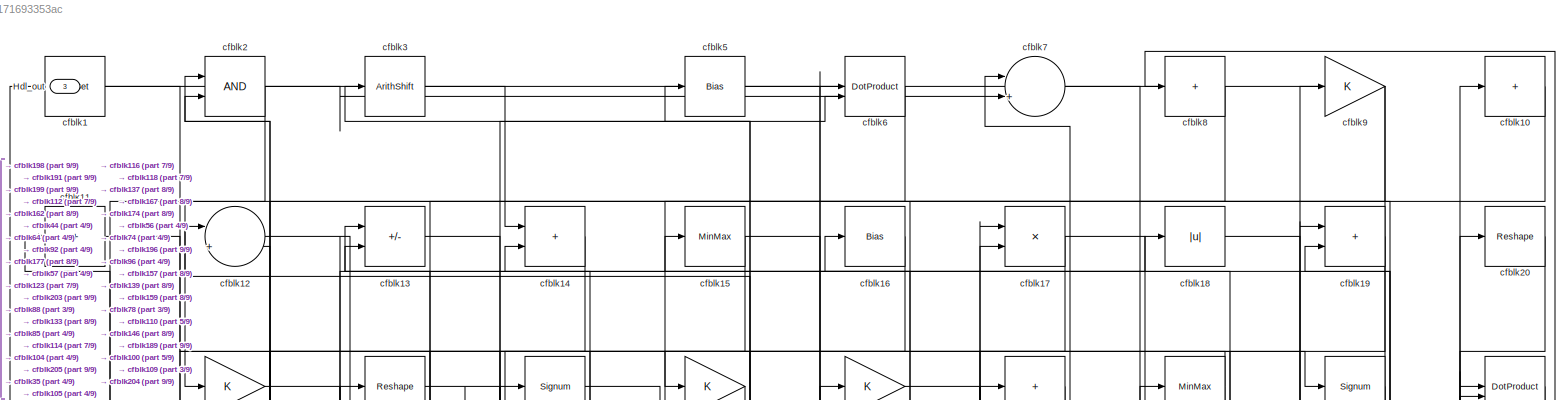
[diagram: root canvas - part 1/9, full width, top band]
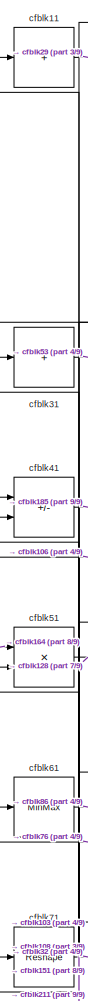
[diagram: root canvas - part 2/9, top left region]
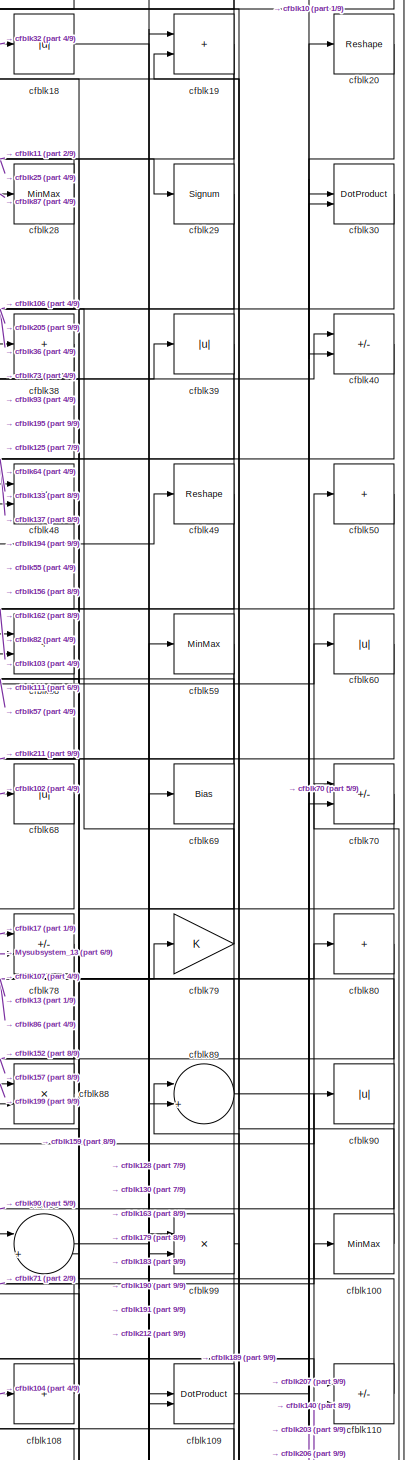
[diagram: root canvas - part 3/9, top right region]
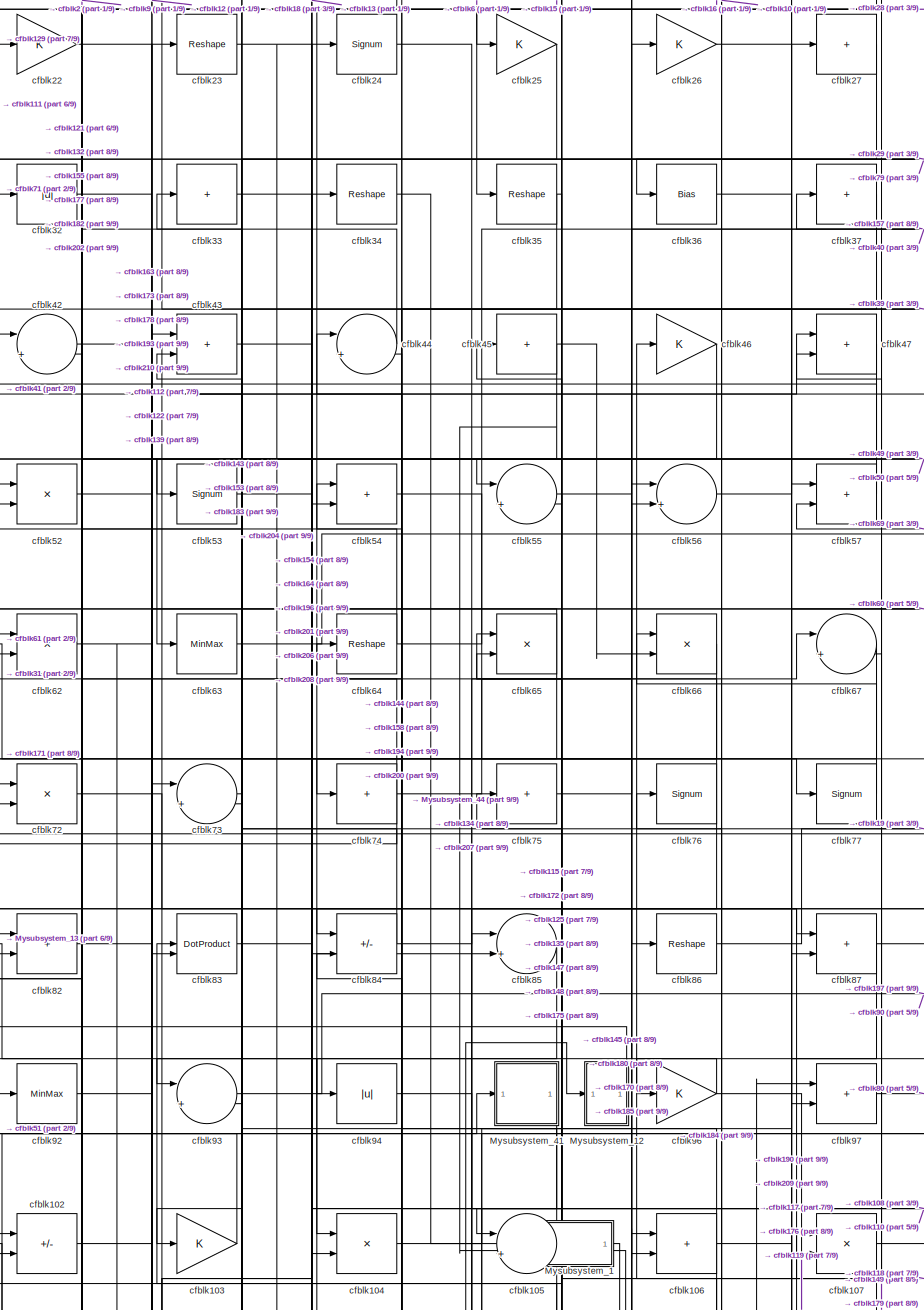
[diagram: root canvas - part 4/9, top center region]
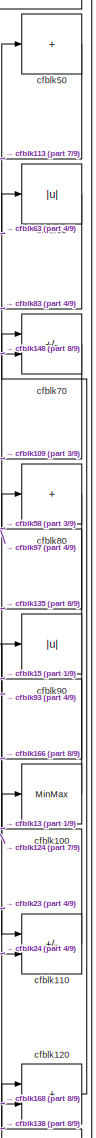
[diagram: root canvas - part 5/9, middle right region]
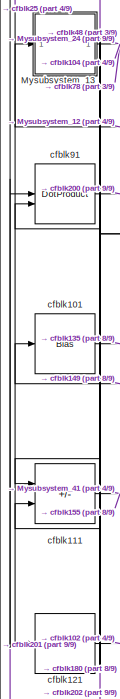
[diagram: root canvas - part 6/9, middle left region]
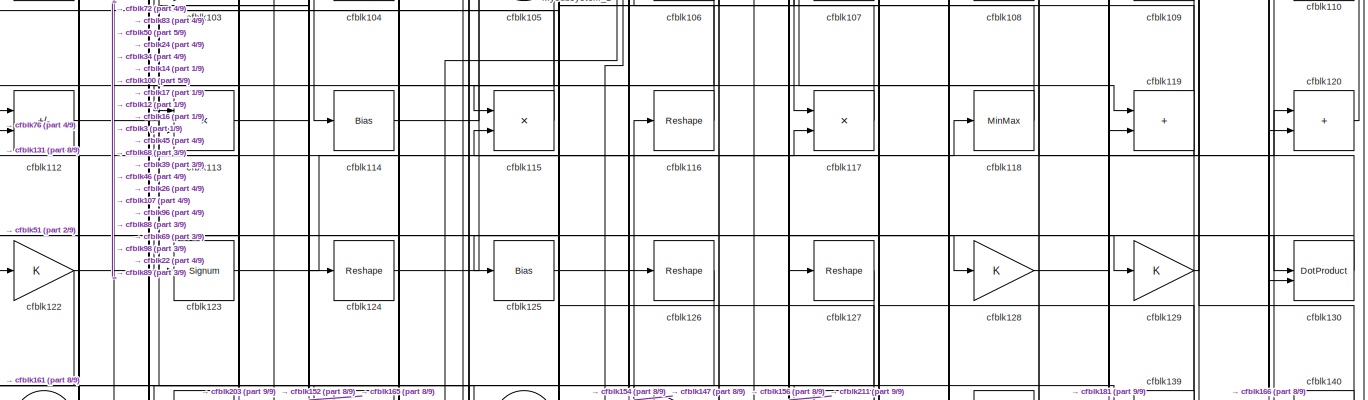
[diagram: root canvas - part 7/9, full width, middle band]
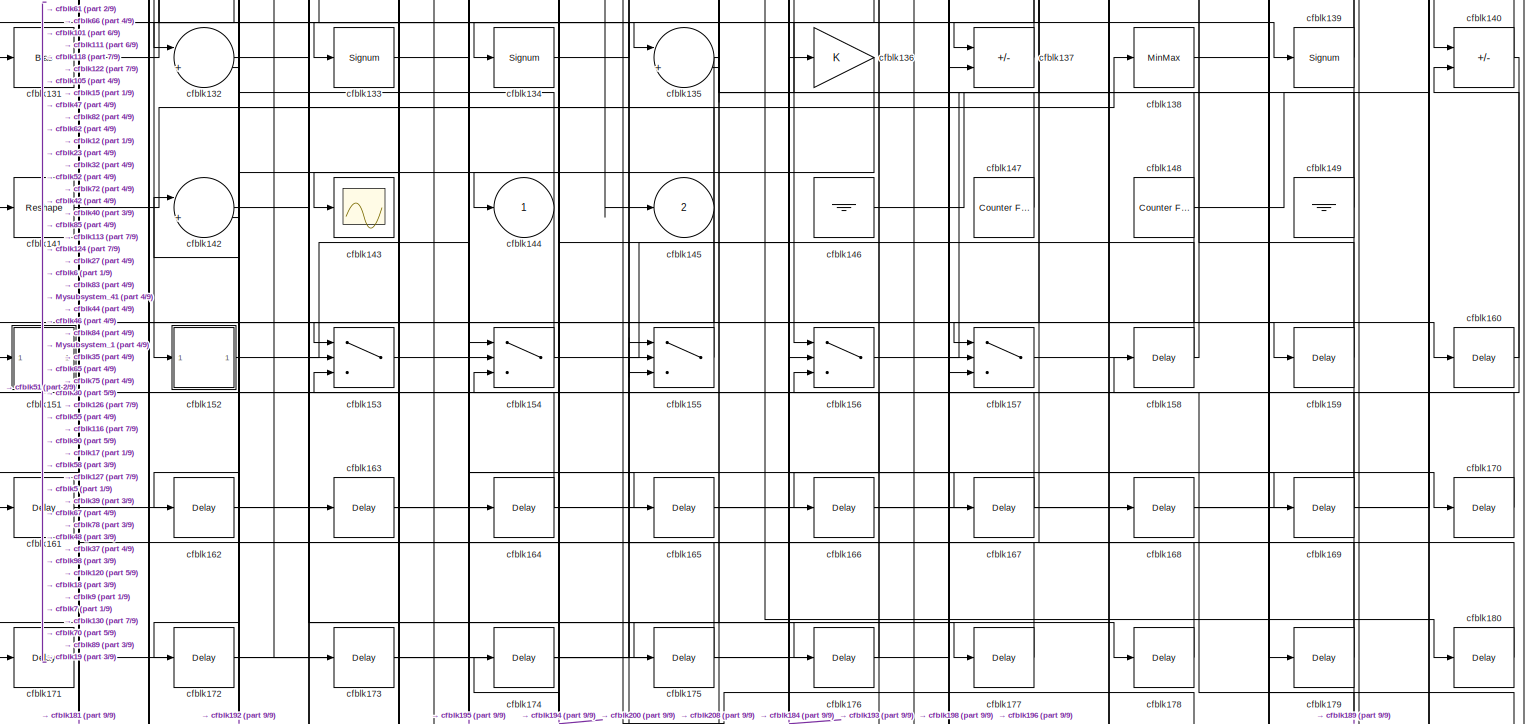
[diagram: root canvas - part 8/9, full width, bottom band]
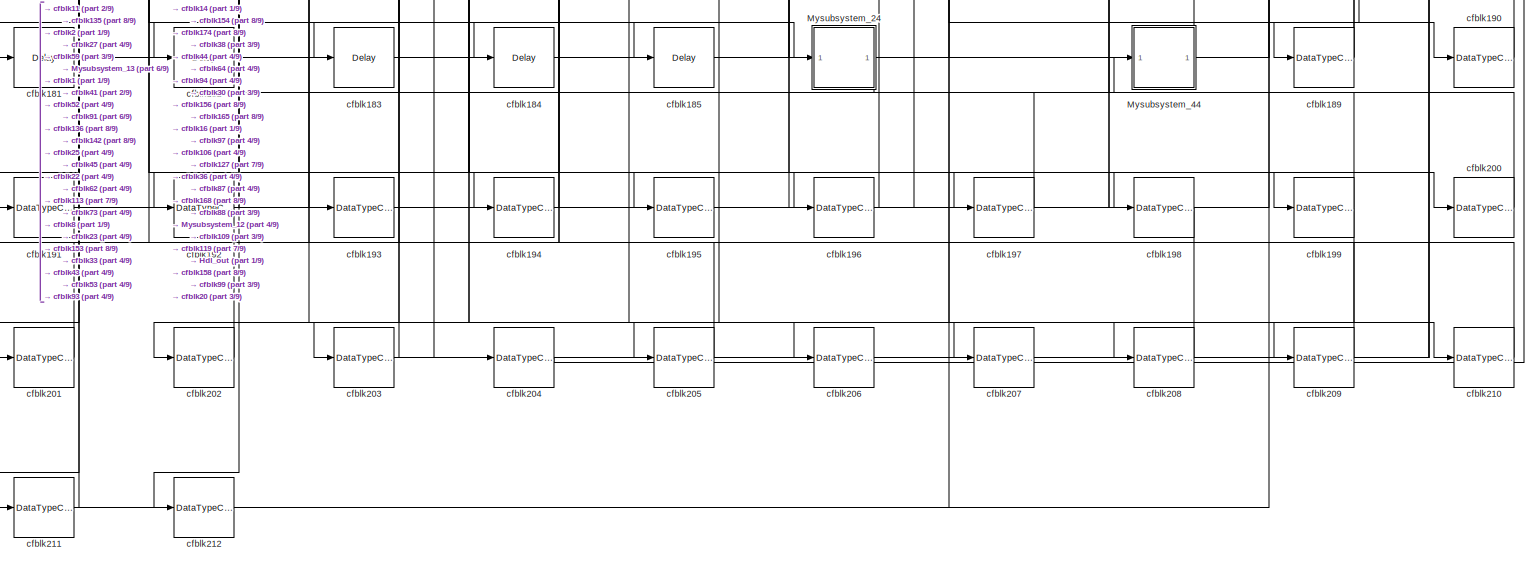
[diagram: root canvas - part 9/9, full width, bottom band]
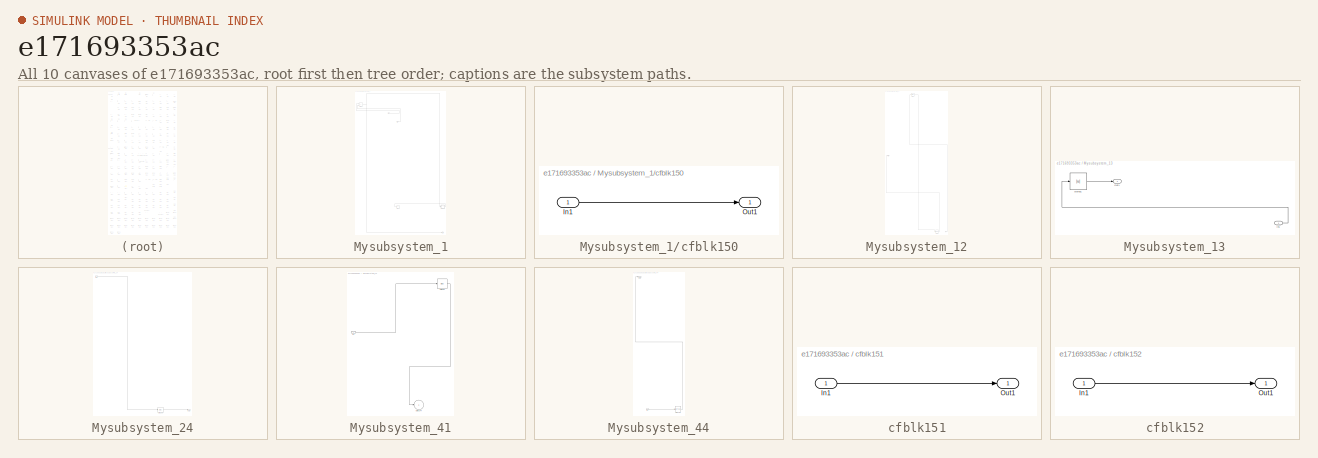
[diagram: thumbnail index - all 10 canvases of the model, root first then tree order]
MODEL slx_e171693353ac
KIND model
CONFIG AbsTol = auto
CONFIG EnableMultiTasking = off
CONFIG FixedStep = auto
CONFIG MaxStep = auto
CONFIG MinStep = auto
CONFIG RelTol = 1e-3
CONFIG SampleTimeConstraint = Unconstrained
CONFIG SolverName = VariableStepAuto
CONFIG StartTime = 0.0
CONFIG StopTime = 10.0
BLOCK [Outport] Hdl_out
  OutDataTypeStr = uint8
  Port = 3
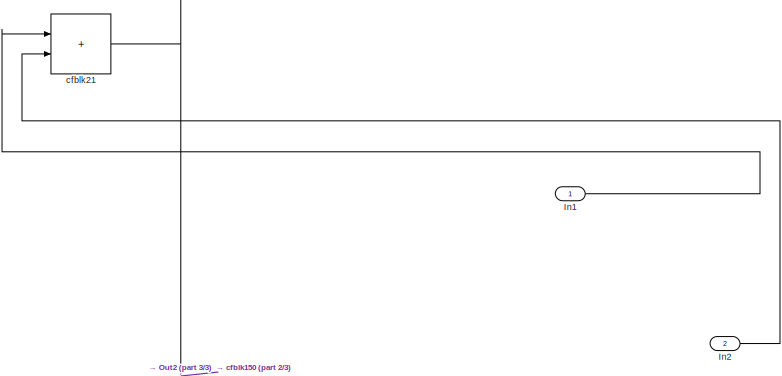
[diagram: Mysubsystem_1 - part 1/3, top left region]
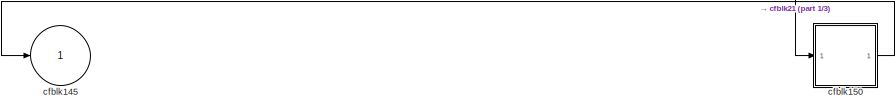
[diagram: Mysubsystem_1 - part 2/3, bottom right region]
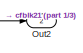
[diagram: Mysubsystem_1 - part 3/3, bottom right region]
BLOCK [SubSystem] Mysubsystem_1
  RTWFcnName = Mysubsystem_1
  RTWFcnNameOpts = User specified
  RTWFileNameOpts = Use function name
  RTWSystemCode = Reusable function
  TreatAsAtomicUnit = on
BLOCK [Inport] Mysubsystem_1/In1
BLOCK [Inport] Mysubsystem_1/In2
  Port = 2
BLOCK [Outport] Mysubsystem_1/Out2
  Port = 2
BLOCK [Outport] Mysubsystem_1/cfblk145
  VectorParamsAs1DForOutWhenUnconnected = off
BLOCK [SubSystem] Mysubsystem_1/cfblk150
  LibrarySourceBlock = hdlsllib/Ports &\nSubsystems/Subsystem
BLOCK [Inport] Mysubsystem_1/cfblk150/In1
BLOCK [Outport] Mysubsystem_1/cfblk150/Out1
BLOCK [Sum] Mysubsystem_1/cfblk21
  IconShape = rectangular
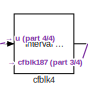
[diagram: Mysubsystem_12 - part 1/4, top center region]
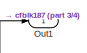
[diagram: Mysubsystem_12 - part 2/4, middle left region]
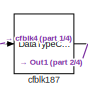
[diagram: Mysubsystem_12 - part 3/4, bottom right region]
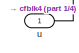
[diagram: Mysubsystem_12 - part 4/4, bottom right region]
BLOCK [SubSystem] Mysubsystem_12
  RTWFcnName = Mysubsystem_12
  RTWFcnNameOpts = User specified
  RTWFileNameOpts = Use function name
  RTWSystemCode = Reusable function
  TreatAsAtomicUnit = on
BLOCK [Outport] Mysubsystem_12/Out1
BLOCK [DataTypeConversion] Mysubsystem_12/cfblk187
  OutDataTypeStr = uint8
  RndMeth = Floor
  SaturateOnIntegerOverflow = off
BLOCK [Reference] Mysubsystem_12/cfblk4  REF=hdlsllib/Logic and Bit
Operations/Interval Test
  SourceBlock = hdlsllib/Logic and Bit\nOperations/Interval Test
  SourceType = Interval Test
BLOCK [Inport] Mysubsystem_12/u
BLOCK [SubSystem] Mysubsystem_13
  RTWFcnName = Mysubsystem_13
  RTWFcnNameOpts = User specified
  RTWFileNameOpts = Use function name
  RTWSystemCode = Reusable function
  TreatAsAtomicUnit = on
BLOCK [Inport] Mysubsystem_13/In1
BLOCK [Outport] Mysubsystem_13/Out1
BLOCK [Abs] Mysubsystem_13/cfblk81
  SaturateOnIntegerOverflow = off
BLOCK [SubSystem] Mysubsystem_24
  RTWFcnName = Mysubsystem_24
  RTWFcnNameOpts = User specified
  RTWFileNameOpts = Use function name
  RTWSystemCode = Reusable function
  TreatAsAtomicUnit = on
BLOCK [Inport] Mysubsystem_24/In1
BLOCK [Outport] Mysubsystem_24/Out1
BLOCK [Delay] Mysubsystem_24/cfblk186
  InputPortMap = u0
  SampleTime = 1
BLOCK [SubSystem] Mysubsystem_41
  RTWFcnName = Mysubsystem_41
  RTWFcnNameOpts = User specified
  RTWFileNameOpts = Use function name
  RTWSystemCode = Reusable function
  TreatAsAtomicUnit = on
BLOCK [Inport] Mysubsystem_41/In1
BLOCK [Outport] Mysubsystem_41/cfblk144
  VectorParamsAs1DForOutWhenUnconnected = off
BLOCK [Bias] Mysubsystem_41/cfblk95
  Bias = 0.0
  SaturateOnIntegerOverflow = off
BLOCK [SubSystem] Mysubsystem_44
  RTWFcnName = Mysubsystem_44
  RTWFcnNameOpts = User specified
  RTWFileNameOpts = Use function name
  RTWSystemCode = Reusable function
  TreatAsAtomicUnit = on
BLOCK [Inport] Mysubsystem_44/In1
BLOCK [Outport] Mysubsystem_44/Out1
BLOCK [DataTypeConversion] Mysubsystem_44/cfblk188
  OutDataTypeStr = uint8
  RndMeth = Floor
  SaturateOnIntegerOverflow = off
BLOCK [Reference] cfblk1  REF=simulink/Logic and Bit
Operations/Bit Set
  LibrarySourceBlock = hdlsllib/Logic and Bit\nOperations/Bit Set
  SourceBlock = simulink/Logic and Bit\nOperations/Bit Set
  SourceType = Bit Set
BLOCK [Sum] cfblk10
  IconShape = rectangular
  Inputs = +
  OutDataTypeStr = uint8
BLOCK [MinMax] cfblk100
  OutDataTypeStr = uint8
BLOCK [Bias] cfblk101
  Bias = 0.0
  SaturateOnIntegerOverflow = off
BLOCK [Sum] cfblk102
  IconShape = rectangular
  Inputs = +-
  OutDataTypeStr = uint8
BLOCK [Gain] cfblk103
  OutDataTypeStr = uint8
BLOCK [Product] cfblk104
  Inputs = */
  OutDataTypeStr = uint8
  RndMeth = Zero
  SaturateOnIntegerOverflow = on
BLOCK [Sum] cfblk105
  Inputs = |++
  OutDataTypeStr = uint8
BLOCK [Sum] cfblk106
  IconShape = rectangular
  OutDataTypeStr = uint8
BLOCK [Product] cfblk107
  Inputs = */
  OutDataTypeStr = uint8
  RndMeth = Zero
  SaturateOnIntegerOverflow = on
BLOCK [Sum] cfblk108
  IconShape = rectangular
  Inputs = +
  OutDataTypeStr = uint8
BLOCK [DotProduct] cfblk109
  OutDataTypeStr = uint8
BLOCK [Sum] cfblk11
  IconShape = rectangular
  Inputs = +
  OutDataTypeStr = uint8
BLOCK [Sum] cfblk110
  IconShape = rectangular
  Inputs = +-
  OutDataTypeStr = uint8
BLOCK [Sum] cfblk111
  IconShape = rectangular
  Inputs = +-
  OutDataTypeStr = uint8
BLOCK [Sum] cfblk112
  IconShape = rectangular
  Inputs = +-
  OutDataTypeStr = uint8
BLOCK [Product] cfblk113
  Inputs = */
  OutDataTypeStr = uint8
  RndMeth = Zero
  SaturateOnIntegerOverflow = on
BLOCK [Bias] cfblk114
  Bias = 0.0
  SaturateOnIntegerOverflow = off
BLOCK [Product] cfblk115
  Inputs = */
  OutDataTypeStr = uint8
  RndMeth = Zero
  SaturateOnIntegerOverflow = on
BLOCK [Reshape] cfblk116
BLOCK [Product] cfblk117
  Inputs = */
  OutDataTypeStr = uint8
  RndMeth = Zero
  SaturateOnIntegerOverflow = on
BLOCK [MinMax] cfblk118
  OutDataTypeStr = uint8
BLOCK [Sum] cfblk119
  IconShape = rectangular
  OutDataTypeStr = uint8
BLOCK [Sum] cfblk12
  Inputs = |++
  OutDataTypeStr = uint8
BLOCK [Sum] cfblk120
  IconShape = rectangular
  OutDataTypeStr = uint8
BLOCK [Sum] cfblk121
  IconShape = rectangular
  Inputs = +
  OutDataTypeStr = uint8
BLOCK [Gain] cfblk122
  OutDataTypeStr = uint8
BLOCK [Signum] cfblk123
BLOCK [Reshape] cfblk124
BLOCK [Bias] cfblk125
  Bias = 0.0
  SaturateOnIntegerOverflow = off
BLOCK [Reshape] cfblk126
BLOCK [Reshape] cfblk127
BLOCK [Gain] cfblk128
  OutDataTypeStr = uint8
BLOCK [Gain] cfblk129
  OutDataTypeStr = uint8
BLOCK [Sum] cfblk13
  IconShape = rectangular
  Inputs = +-
  OutDataTypeStr = uint8
BLOCK [DotProduct] cfblk130
  OutDataTypeStr = uint8
BLOCK [Bias] cfblk131
  Bias = 0.0
  SaturateOnIntegerOverflow = off
BLOCK [Sum] cfblk132
  Inputs = |++
  OutDataTypeStr = uint8
BLOCK [Signum] cfblk133
BLOCK [Signum] cfblk134
BLOCK [Sum] cfblk135
  Inputs = |++
  OutDataTypeStr = uint8
BLOCK [Gain] cfblk136
  OutDataTypeStr = uint8
BLOCK [Sum] cfblk137
  IconShape = rectangular
  Inputs = +-
  OutDataTypeStr = uint8
BLOCK [MinMax] cfblk138
  OutDataTypeStr = uint8
BLOCK [Signum] cfblk139
BLOCK [Sum] cfblk14
  IconShape = rectangular
  OutDataTypeStr = uint8
BLOCK [Sum] cfblk140
  IconShape = rectangular
  Inputs = +-
  OutDataTypeStr = uint8
BLOCK [Reshape] cfblk141
BLOCK [Sum] cfblk142
  Inputs = |++
  OutDataTypeStr = uint8
BLOCK [Scope] cfblk143
  Floating = off
  NumInputPorts = 1
  ScopeSpecificationString = Simulink.scopes.TimeScopeBlockCfg('CurrentConfiguration', extmgr.ConfigurationSet(extmgr.Configuration('Core','General UI',true),extmgr.Configuration('Core','Source UI',true),extmgr.Configuration('Sources','WiredSimulink',true,'DataLoggingVariableName','ScopeData2','DataLoggingSaveFormat','Array','DataLoggingLimitDataPoints',true,'DataLoggingDecimation','1'),extmgr.Configuration('Visuals','Time Do...<+868ch>
BLOCK [Outport] cfblk144
  OutDataTypeStr = uint8
  VectorParamsAs1DForOutWhenUnconnected = off
BLOCK [Outport] cfblk145
  OutDataTypeStr = uint8
  Port = 2
  VectorParamsAs1DForOutWhenUnconnected = off
BLOCK [Ground] cfblk146
BLOCK [Reference] cfblk147  REF=hdlsllib/Sources/Counter
Free-Running
  SourceBlock = hdlsllib/Sources/Counter\nFree-Running
  SourceType = Counter Free-Running
BLOCK [Reference] cfblk148  REF=hdlsllib/Sources/Counter
Free-Running
  SourceBlock = hdlsllib/Sources/Counter\nFree-Running
  SourceType = Counter Free-Running
BLOCK [Ground] cfblk149
BLOCK [MinMax] cfblk15
  OutDataTypeStr = uint8
BLOCK [SubSystem] cfblk151
  LibrarySourceBlock = hdlsllib/Ports &\nSubsystems/Subsystem
BLOCK [Inport] cfblk151/In1
BLOCK [Outport] cfblk151/Out1
BLOCK [SubSystem] cfblk152
  LibrarySourceBlock = hdlsllib/Ports &\nSubsystems/Subsystem
BLOCK [Inport] cfblk152/In1
BLOCK [Outport] cfblk152/Out1
BLOCK [Switch] cfblk153
  InputSameDT = off
  OutDataTypeStr = uint8
  SaturateOnIntegerOverflow = off
BLOCK [Switch] cfblk154
  InputSameDT = off
  OutDataTypeStr = uint8
  SaturateOnIntegerOverflow = off
BLOCK [Switch] cfblk155
  InputSameDT = off
  OutDataTypeStr = uint8
  SaturateOnIntegerOverflow = off
BLOCK [Switch] cfblk156
  InputSameDT = off
  OutDataTypeStr = uint8
  SaturateOnIntegerOverflow = off
BLOCK [Switch] cfblk157
  InputSameDT = off
  OutDataTypeStr = uint8
  SaturateOnIntegerOverflow = off
BLOCK [Delay] cfblk158
  InputPortMap = u0
  SampleTime = 1
BLOCK [Delay] cfblk159
  InputPortMap = u0
  SampleTime = 1
BLOCK [Bias] cfblk16
  Bias = 0.0
  SaturateOnIntegerOverflow = off
BLOCK [Delay] cfblk160
  InputPortMap = u0
  SampleTime = 1
BLOCK [Delay] cfblk161
  InputPortMap = u0
  SampleTime = 1
BLOCK [Delay] cfblk162
  InputPortMap = u0
  SampleTime = 1
BLOCK [Delay] cfblk163
  InputPortMap = u0
  SampleTime = 1
BLOCK [Delay] cfblk164
  InputPortMap = u0
  SampleTime = 1
BLOCK [Delay] cfblk165
  InputPortMap = u0
  SampleTime = 1
BLOCK [Delay] cfblk166
  InputPortMap = u0
  SampleTime = 1
BLOCK [Delay] cfblk167
  InputPortMap = u0
  SampleTime = 1
BLOCK [Delay] cfblk168
  InputPortMap = u0
  SampleTime = 1
BLOCK [Delay] cfblk169
  InputPortMap = u0
  SampleTime = 1
BLOCK [Product] cfblk17
  Inputs = */
  OutDataTypeStr = uint8
  RndMeth = Zero
  SaturateOnIntegerOverflow = on
BLOCK [Delay] cfblk170
  InputPortMap = u0
  SampleTime = 1
BLOCK [Delay] cfblk171
  InputPortMap = u0
  SampleTime = 1
BLOCK [Delay] cfblk172
  InputPortMap = u0
  SampleTime = 1
BLOCK [Delay] cfblk173
  InputPortMap = u0
  SampleTime = 1
BLOCK [Delay] cfblk174
  InputPortMap = u0
  SampleTime = 1
BLOCK [Delay] cfblk175
  InputPortMap = u0
  SampleTime = 1
BLOCK [Delay] cfblk176
  InputPortMap = u0
  SampleTime = 1
BLOCK [Delay] cfblk177
  InputPortMap = u0
  SampleTime = 1
BLOCK [Delay] cfblk178
  InputPortMap = u0
  SampleTime = 1
BLOCK [Delay] cfblk179
  InputPortMap = u0
  SampleTime = 1
BLOCK [Abs] cfblk18
  OutDataTypeStr = uint8
  SaturateOnIntegerOverflow = off
BLOCK [Delay] cfblk180
  InputPortMap = u0
  SampleTime = 1
BLOCK [Delay] cfblk181
  InputPortMap = u0
  SampleTime = 1
BLOCK [Delay] cfblk182
  InputPortMap = u0
  SampleTime = 1
BLOCK [Delay] cfblk183
  InputPortMap = u0
  SampleTime = 1
BLOCK [Delay] cfblk184
  InputPortMap = u0
  SampleTime = 1
BLOCK [Delay] cfblk185
  InputPortMap = u0
  SampleTime = 1
BLOCK [DataTypeConversion] cfblk189
  OutDataTypeStr = uint8
  RndMeth = Floor
  SaturateOnIntegerOverflow = off
BLOCK [Sum] cfblk19
  IconShape = rectangular
  OutDataTypeStr = uint8
BLOCK [DataTypeConversion] cfblk190
  OutDataTypeStr = uint8
  RndMeth = Floor
  SaturateOnIntegerOverflow = off
BLOCK [DataTypeConversion] cfblk191
  OutDataTypeStr = uint8
  RndMeth = Floor
  SaturateOnIntegerOverflow = off
BLOCK [DataTypeConversion] cfblk192
  OutDataTypeStr = uint8
  RndMeth = Floor
  SaturateOnIntegerOverflow = off
BLOCK [DataTypeConversion] cfblk193
  OutDataTypeStr = uint8
  RndMeth = Floor
  SaturateOnIntegerOverflow = off
BLOCK [DataTypeConversion] cfblk194
  OutDataTypeStr = uint8
  RndMeth = Floor
  SaturateOnIntegerOverflow = off
BLOCK [DataTypeConversion] cfblk195
  OutDataTypeStr = uint8
  RndMeth = Floor
  SaturateOnIntegerOverflow = off
BLOCK [DataTypeConversion] cfblk196
  OutDataTypeStr = uint8
  RndMeth = Floor
  SaturateOnIntegerOverflow = off
BLOCK [DataTypeConversion] cfblk197
  OutDataTypeStr = uint8
  RndMeth = Floor
  SaturateOnIntegerOverflow = off
BLOCK [DataTypeConversion] cfblk198
  OutDataTypeStr = uint8
  RndMeth = Floor
  SaturateOnIntegerOverflow = off
BLOCK [DataTypeConversion] cfblk199
  OutDataTypeStr = uint8
  RndMeth = Floor
  SaturateOnIntegerOverflow = off
BLOCK [Logic] cfblk2
  AllPortsSameDT = off
  OutDataTypeStr = boolean
BLOCK [Reshape] cfblk20
BLOCK [DataTypeConversion] cfblk200
  OutDataTypeStr = uint8
  RndMeth = Floor
  SaturateOnIntegerOverflow = off
BLOCK [DataTypeConversion] cfblk201
  OutDataTypeStr = uint8
  RndMeth = Floor
  SaturateOnIntegerOverflow = off
BLOCK [DataTypeConversion] cfblk202
  OutDataTypeStr = uint8
  RndMeth = Floor
  SaturateOnIntegerOverflow = off
BLOCK [DataTypeConversion] cfblk203
  OutDataTypeStr = uint8
  RndMeth = Floor
  SaturateOnIntegerOverflow = off
BLOCK [DataTypeConversion] cfblk204
  OutDataTypeStr = uint8
  RndMeth = Floor
  SaturateOnIntegerOverflow = off
BLOCK [DataTypeConversion] cfblk205
  OutDataTypeStr = uint8
  RndMeth = Floor
  SaturateOnIntegerOverflow = off
BLOCK [DataTypeConversion] cfblk206
  OutDataTypeStr = uint8
  RndMeth = Floor
  SaturateOnIntegerOverflow = off
BLOCK [DataTypeConversion] cfblk207
  OutDataTypeStr = uint8
  RndMeth = Floor
  SaturateOnIntegerOverflow = off
BLOCK [DataTypeConversion] cfblk208
  OutDataTypeStr = uint8
  RndMeth = Floor
  SaturateOnIntegerOverflow = off
BLOCK [DataTypeConversion] cfblk209
  OutDataTypeStr = uint8
  RndMeth = Floor
  SaturateOnIntegerOverflow = off
BLOCK [DataTypeConversion] cfblk210
  OutDataTypeStr = uint8
  RndMeth = Floor
  SaturateOnIntegerOverflow = off
BLOCK [DataTypeConversion] cfblk211
  OutDataTypeStr = uint8
  RndMeth = Floor
  SaturateOnIntegerOverflow = off
BLOCK [DataTypeConversion] cfblk212
  OutDataTypeStr = uint8
  RndMeth = Floor
  SaturateOnIntegerOverflow = off
BLOCK [Gain] cfblk22
  OutDataTypeStr = uint8
BLOCK [Reshape] cfblk23
BLOCK [Signum] cfblk24
BLOCK [Gain] cfblk25
  OutDataTypeStr = uint8
BLOCK [Gain] cfblk26
  OutDataTypeStr = uint8
BLOCK [Sum] cfblk27
  IconShape = rectangular
  Inputs = +
  OutDataTypeStr = uint8
BLOCK [MinMax] cfblk28
  OutDataTypeStr = uint8
BLOCK [Signum] cfblk29
BLOCK [ArithShift] cfblk3
  BitShiftNumber = 8
  InputPortMap = u0
BLOCK [DotProduct] cfblk30
  OutDataTypeStr = uint8
BLOCK [Sum] cfblk31
  IconShape = rectangular
  Inputs = +
  OutDataTypeStr = uint8
BLOCK [Abs] cfblk32
  OutDataTypeStr = uint8
  SaturateOnIntegerOverflow = off
BLOCK [Sum] cfblk33
  IconShape = rectangular
  Inputs = +
  OutDataTypeStr = uint8
BLOCK [Reshape] cfblk34
BLOCK [Reshape] cfblk35
BLOCK [Bias] cfblk36
  Bias = 0.0
  SaturateOnIntegerOverflow = off
BLOCK [Sum] cfblk37
  IconShape = rectangular
  Inputs = +
  OutDataTypeStr = uint8
BLOCK [Sum] cfblk38
  IconShape = rectangular
  Inputs = +
  OutDataTypeStr = uint8
BLOCK [Abs] cfblk39
  OutDataTypeStr = uint8
  SaturateOnIntegerOverflow = off
BLOCK [Sum] cfblk40
  IconShape = rectangular
  Inputs = +-
  OutDataTypeStr = uint8
BLOCK [Sum] cfblk41
  IconShape = rectangular
  Inputs = +-
  OutDataTypeStr = uint8
BLOCK [Sum] cfblk42
  Inputs = |++
  OutDataTypeStr = uint8
BLOCK [Sum] cfblk43
  IconShape = rectangular
  OutDataTypeStr = uint8
BLOCK [Sum] cfblk44
  Inputs = |++
  OutDataTypeStr = uint8
BLOCK [Sum] cfblk45
  IconShape = rectangular
  Inputs = +
  OutDataTypeStr = uint8
BLOCK [Gain] cfblk46
  OutDataTypeStr = uint8
BLOCK [Sum] cfblk47
  IconShape = rectangular
  OutDataTypeStr = uint8
BLOCK [Product] cfblk48
  Inputs = */
  OutDataTypeStr = uint8
  RndMeth = Zero
  SaturateOnIntegerOverflow = on
BLOCK [Reshape] cfblk49
BLOCK [Bias] cfblk5
  Bias = 0.0
  SaturateOnIntegerOverflow = off
BLOCK [Sum] cfblk50
  IconShape = rectangular
  Inputs = +
  OutDataTypeStr = uint8
BLOCK [Product] cfblk51
  Inputs = */
  OutDataTypeStr = uint8
  RndMeth = Zero
  SaturateOnIntegerOverflow = on
BLOCK [Product] cfblk52
  Inputs = */
  OutDataTypeStr = uint8
  RndMeth = Zero
  SaturateOnIntegerOverflow = on
BLOCK [Signum] cfblk53
BLOCK [Sum] cfblk54
  IconShape = rectangular
  OutDataTypeStr = uint8
BLOCK [Sum] cfblk55
  Inputs = |++
  OutDataTypeStr = uint8
BLOCK [Sum] cfblk56
  Inputs = |++
  OutDataTypeStr = uint8
BLOCK [Sum] cfblk57
  IconShape = rectangular
  OutDataTypeStr = uint8
BLOCK [Sum] cfblk58
  IconShape = rectangular
  OutDataTypeStr = uint8
BLOCK [MinMax] cfblk59
  OutDataTypeStr = uint8
BLOCK [DotProduct] cfblk6
  OutDataTypeStr = uint8
BLOCK [Abs] cfblk60
  OutDataTypeStr = uint8
  SaturateOnIntegerOverflow = off
BLOCK [MinMax] cfblk61
  OutDataTypeStr = uint8
BLOCK [Product] cfblk62
  Inputs = */
  OutDataTypeStr = uint8
  RndMeth = Zero
  SaturateOnIntegerOverflow = on
BLOCK [MinMax] cfblk63
  OutDataTypeStr = uint8
BLOCK [Reshape] cfblk64
BLOCK [Product] cfblk65
  Inputs = */
  OutDataTypeStr = uint8
  RndMeth = Zero
  SaturateOnIntegerOverflow = on
BLOCK [Product] cfblk66
  Inputs = */
  OutDataTypeStr = uint8
  RndMeth = Zero
  SaturateOnIntegerOverflow = on
BLOCK [Sum] cfblk67
  Inputs = |++
  OutDataTypeStr = uint8
BLOCK [Abs] cfblk68
  OutDataTypeStr = uint8
  SaturateOnIntegerOverflow = off
BLOCK [Bias] cfblk69
  Bias = 0.0
  SaturateOnIntegerOverflow = off
BLOCK [Sum] cfblk7
  Inputs = |++
  OutDataTypeStr = uint8
BLOCK [Sum] cfblk70
  IconShape = rectangular
  Inputs = +-
  OutDataTypeStr = uint8
BLOCK [Reshape] cfblk71
BLOCK [Product] cfblk72
  Inputs = */
  OutDataTypeStr = uint8
  RndMeth = Zero
  SaturateOnIntegerOverflow = on
BLOCK [Sum] cfblk73
  Inputs = |++
  OutDataTypeStr = uint8
BLOCK [Sum] cfblk74
  IconShape = rectangular
  Inputs = +
  OutDataTypeStr = uint8
BLOCK [Sum] cfblk75
  IconShape = rectangular
  Inputs = +
  OutDataTypeStr = uint8
BLOCK [Signum] cfblk76
BLOCK [Signum] cfblk77
BLOCK [Sum] cfblk78
  IconShape = rectangular
  Inputs = +-
  OutDataTypeStr = uint8
BLOCK [Gain] cfblk79
  OutDataTypeStr = uint8
BLOCK [Sum] cfblk8
  IconShape = rectangular
  Inputs = +
  OutDataTypeStr = uint8
BLOCK [Sum] cfblk80
  IconShape = rectangular
  Inputs = +
  OutDataTypeStr = uint8
BLOCK [Sum] cfblk82
  IconShape = rectangular
  OutDataTypeStr = uint8
BLOCK [DotProduct] cfblk83
  OutDataTypeStr = uint8
BLOCK [Sum] cfblk84
  IconShape = rectangular
  Inputs = +-
  OutDataTypeStr = uint8
BLOCK [Sum] cfblk85
  Inputs = |++
  OutDataTypeStr = uint8
BLOCK [Reshape] cfblk86
BLOCK [Sum] cfblk87
  IconShape = rectangular
  OutDataTypeStr = uint8
BLOCK [Product] cfblk88
  Inputs = */
  OutDataTypeStr = uint8
  RndMeth = Zero
  SaturateOnIntegerOverflow = on
BLOCK [Sum] cfblk89
  Inputs = |++
  OutDataTypeStr = uint8
BLOCK [Gain] cfblk9
  OutDataTypeStr = uint8
BLOCK [Abs] cfblk90
  OutDataTypeStr = uint8
  SaturateOnIntegerOverflow = off
BLOCK [DotProduct] cfblk91
  OutDataTypeStr = uint8
BLOCK [MinMax] cfblk92
  OutDataTypeStr = uint8
BLOCK [Sum] cfblk93
  Inputs = |++
  OutDataTypeStr = uint8
BLOCK [Abs] cfblk94
  OutDataTypeStr = uint8
  SaturateOnIntegerOverflow = off
BLOCK [Gain] cfblk96
  OutDataTypeStr = uint8
BLOCK [Sum] cfblk97
  IconShape = rectangular
  OutDataTypeStr = uint8
BLOCK [Sum] cfblk98
  Inputs = |++
  OutDataTypeStr = uint8
BLOCK [Product] cfblk99
  Inputs = */
  OutDataTypeStr = uint8
  RndMeth = Zero
  SaturateOnIntegerOverflow = on
LINE Mysubsystem_1/In1:1 -> Mysubsystem_1/cfblk21:1
LINE Mysubsystem_1/In2:1 -> Mysubsystem_1/cfblk21:2
LINE Mysubsystem_1/cfblk150/In1:1 -> Mysubsystem_1/cfblk150/Out1:1
LINE Mysubsystem_1/cfblk150:1 -> Mysubsystem_1/cfblk145:1
NET Mysubsystem_1/cfblk21:1 -> Mysubsystem_1/Out2:1, Mysubsystem_1/cfblk150:1
LINE Mysubsystem_12/cfblk187:1 -> Mysubsystem_12/Out1:1
LINE Mysubsystem_12/cfblk4:1 -> Mysubsystem_12/cfblk187:1
LINE Mysubsystem_12/u:1 -> Mysubsystem_12/cfblk4:1
LINE Mysubsystem_12:1 -> Mysubsystem_13:1
LINE Mysubsystem_13/In1:1 -> Mysubsystem_13/cfblk81:1
LINE Mysubsystem_13/cfblk81:1 -> Mysubsystem_13/Out1:1
NET Mysubsystem_13:1 -> Mysubsystem_24:1, cfblk104:1, cfblk78:2
LINE Mysubsystem_1:1 -> cfblk145:1
LINE Mysubsystem_1:2 -> cfblk180:1
LINE Mysubsystem_24/In1:1 -> Mysubsystem_24/cfblk186:1
LINE Mysubsystem_24/cfblk186:1 -> Mysubsystem_24/Out1:1
LINE Mysubsystem_24:1 -> Mysubsystem_44:1
LINE Mysubsystem_41/In1:1 -> Mysubsystem_41/cfblk95:1
LINE Mysubsystem_41/cfblk95:1 -> Mysubsystem_41/cfblk144:1
LINE Mysubsystem_41:1 -> cfblk144:1
LINE Mysubsystem_44/In1:1 -> Mysubsystem_44/cfblk188:1
LINE Mysubsystem_44/cfblk188:1 -> Mysubsystem_44/Out1:1
LINE Mysubsystem_44:1 -> Mysubsystem_12:1
LINE cfblk100:1 -> cfblk15:1
LINE cfblk101:1 -> cfblk135:1
LINE cfblk102:1 -> cfblk47:1
LINE cfblk103:1 -> cfblk51:2
LINE cfblk104:1 -> cfblk108:1
NET cfblk105:1 -> cfblk172:1, cfblk54:1
NET cfblk106:1 -> cfblk184:1, cfblk209:1, cfblk41:2
LINE cfblk107:1 -> cfblk79:1
LINE cfblk108:1 -> cfblk71:1
LINE cfblk109:1 -> cfblk10:1
LINE cfblk10:1 -> cfblk96:1
NET cfblk110:1 -> cfblk13:2, cfblk50:1
NET cfblk111:1 -> Mysubsystem_41:1, cfblk155:3
LINE cfblk112:1 -> cfblk34:1
LINE cfblk113:1 -> cfblk165:1
LINE cfblk114:1 -> cfblk17:2
LINE cfblk115:1 -> cfblk83:1
LINE cfblk116:1 -> cfblk3:1
LINE cfblk117:1 -> cfblk46:1
NET cfblk118:1 -> cfblk107:1, cfblk115:1, cfblk12:1
NET cfblk119:1 -> cfblk115:2, cfblk76:1
LINE cfblk11:1 -> cfblk29:1
LINE cfblk120:1 -> cfblk70:1
LINE cfblk121:1 -> cfblk102:1
NET cfblk122:1 -> cfblk131:1, cfblk24:1
LINE cfblk123:1 -> cfblk117:2
LINE cfblk124:1 -> cfblk100:1
NET cfblk125:1 -> cfblk39:1, cfblk45:1
LINE cfblk126:1 -> cfblk161:1
LINE cfblk127:1 -> cfblk156:1
LINE cfblk128:1 -> cfblk69:1
LINE cfblk129:1 -> cfblk22:1
NET cfblk12:1 -> cfblk177:1, cfblk57:1
NET cfblk130:1 -> cfblk122:1, cfblk88:2, cfblk89:1
NET cfblk131:1 -> cfblk118:1, cfblk153:2
LINE cfblk132:1 -> cfblk23:1
NET cfblk133:1 -> cfblk169:1, cfblk6:2
LINE cfblk134:1 -> cfblk67:1
NET cfblk135:1 -> cfblk181:1, cfblk75:1
LINE cfblk136:1 -> cfblk192:1
LINE cfblk137:1 -> cfblk5:1
LINE cfblk138:1 -> cfblk120:1
LINE cfblk139:1 -> cfblk7:1
LINE cfblk13:1 -> cfblk85:2
NET cfblk140:1 -> cfblk141:1, cfblk19:2
LINE cfblk141:1 -> cfblk138:1
LINE cfblk142:1 -> cfblk160:1
LINE cfblk146:1 -> cfblk9:1
NET cfblk147:1 -> cfblk116:1, cfblk65:2
NET cfblk148:1 -> cfblk151:1, cfblk65:1, cfblk70:2
NET cfblk149:1 -> cfblk101:1, cfblk67:2
LINE cfblk14:1 -> cfblk114:1
LINE cfblk151/In1:1 -> cfblk151/Out1:1
LINE cfblk151:1 -> cfblk61:1
LINE cfblk152/In1:1 -> cfblk152/Out1:1
LINE cfblk152:1 -> cfblk124:1
LINE cfblk153:1 -> cfblk195:1
NET cfblk154:1 -> cfblk126:1, cfblk42:2
LINE cfblk155:1 -> cfblk82:1
LINE cfblk156:1 -> cfblk48:1
LINE cfblk157:1 -> cfblk37:1
LINE cfblk158:1 -> cfblk44:1
LINE cfblk159:1 -> cfblk98:1
NET cfblk15:1 -> cfblk162:1, cfblk56:1
LINE cfblk160:1 -> cfblk140:2
LINE cfblk161:1 -> cfblk154:1
LINE cfblk162:1 -> cfblk48:2
LINE cfblk163:1 -> cfblk89:2
LINE cfblk164:1 -> cfblk51:1
LINE cfblk165:1 -> cfblk198:1
LINE cfblk166:1 -> cfblk130:2
LINE cfblk167:1 -> cfblk17:1
LINE cfblk168:1 -> cfblk120:2
LINE cfblk169:1 -> cfblk132:2
NET cfblk16:1 -> cfblk104:2, cfblk105:2, cfblk112:1, cfblk123:1, cfblk74:1
LINE cfblk170:1 -> cfblk84:2
LINE cfblk171:1 -> cfblk155:1
LINE cfblk172:1 -> cfblk157:2
LINE cfblk173:1 -> cfblk85:1
LINE cfblk174:1 -> cfblk6:1
LINE cfblk175:1 -> cfblk153:3
LINE cfblk176:1 -> cfblk156:3
LINE cfblk177:1 -> cfblk82:2
LINE cfblk178:1 -> cfblk155:2
LINE cfblk179:1 -> cfblk47:2
NET cfblk17:1 -> cfblk157:3, cfblk78:1
LINE cfblk180:1 -> cfblk111:2
LINE cfblk181:1 -> cfblk119:2
LINE cfblk182:1 -> cfblk87:2
LINE cfblk183:1 -> cfblk109:1
LINE cfblk184:1 -> cfblk156:2
LINE cfblk185:1 -> cfblk106:1
NET cfblk189:1 -> Hdl_out:1, cfblk158:1
LINE cfblk18:1 -> cfblk179:1
LINE cfblk190:1 -> cfblk99:1
LINE cfblk191:1 -> cfblk99:2
LINE cfblk192:1 -> cfblk142:1
LINE cfblk193:1 -> cfblk136:1
NET cfblk194:1 -> cfblk154:3, cfblk64:1
LINE cfblk195:1 -> cfblk38:1
NET cfblk196:1 -> cfblk168:1, cfblk16:1, cfblk97:1
LINE cfblk197:1 -> cfblk33:1
LINE cfblk198:1 -> cfblk1:1
NET cfblk199:1 -> cfblk212:1, cfblk88:1
NET cfblk19:1 -> cfblk102:2, cfblk68:1
LINE cfblk1:1 -> cfblk199:1
NET cfblk200:1 -> cfblk142:2, cfblk44:2
LINE cfblk201:1 -> cfblk91:1
LINE cfblk202:1 -> cfblk91:2
NET cfblk203:1 -> cfblk113:2, cfblk20:1
LINE cfblk204:1 -> cfblk8:1
LINE cfblk205:1 -> cfblk14:2
LINE cfblk206:1 -> cfblk30:1
LINE cfblk207:1 -> cfblk30:2
NET cfblk208:1 -> cfblk174:1, cfblk52:1
LINE cfblk209:1 -> cfblk43:1
LINE cfblk20:1 -> cfblk40:2
LINE cfblk210:1 -> cfblk43:2
NET cfblk211:1 -> cfblk11:1, cfblk127:1
LINE cfblk212:1 -> cfblk59:1
LINE cfblk22:1 -> cfblk193:1
NET cfblk23:1 -> cfblk110:1, cfblk204:1
LINE cfblk24:1 -> cfblk110:2
NET cfblk25:1 -> cfblk121:1, cfblk182:1
LINE cfblk26:1 -> cfblk129:1
NET cfblk27:1 -> cfblk154:2, cfblk201:1
NET cfblk28:1 -> cfblk106:2, cfblk25:1, cfblk73:2
LINE cfblk29:1 -> cfblk93:1
NET cfblk2:1 -> cfblk191:1, cfblk7:2
LINE cfblk30:1 -> cfblk205:1
LINE cfblk31:1 -> cfblk53:1
NET cfblk32:1 -> cfblk178:1, cfblk18:1, cfblk54:2
LINE cfblk33:1 -> cfblk196:1
LINE cfblk34:1 -> Mysubsystem_1:1
NET cfblk35:1 -> cfblk175:1, cfblk55:1, cfblk62:2
LINE cfblk36:1 -> cfblk190:1
LINE cfblk37:1 -> cfblk84:1
LINE cfblk38:1 -> cfblk194:1
NET cfblk39:1 -> cfblk137:1, cfblk55:2
LINE cfblk3:1 -> cfblk14:1
LINE cfblk40:1 -> cfblk133:1
LINE cfblk41:1 -> cfblk185:1
LINE cfblk42:1 -> cfblk139:1
LINE cfblk43:1 -> cfblk208:1
LINE cfblk44:1 -> cfblk2:1
NET cfblk45:1 -> Mysubsystem_1:2, cfblk202:1, cfblk66:2
LINE cfblk46:1 -> cfblk134:1
LINE cfblk47:1 -> cfblk132:1
LINE cfblk48:1 -> cfblk111:1
LINE cfblk49:1 -> cfblk103:1
NET cfblk50:1 -> cfblk113:1, cfblk63:1
LINE cfblk51:1 -> cfblk128:1
LINE cfblk52:1 -> cfblk163:1
NET cfblk53:1 -> cfblk107:2, cfblk206:1
LINE cfblk54:1 -> cfblk77:1
NET cfblk55:1 -> cfblk105:1, cfblk170:1
LINE cfblk56:1 -> cfblk27:1
LINE cfblk57:1 -> cfblk42:1
LINE cfblk58:1 -> cfblk137:2
LINE cfblk59:1 -> cfblk211:1
LINE cfblk5:1 -> cfblk167:1
LINE cfblk60:1 -> cfblk83:2
NET cfblk61:1 -> cfblk41:1, cfblk86:1
NET cfblk62:1 -> cfblk173:1, cfblk210:1
LINE cfblk63:1 -> cfblk60:1
NET cfblk64:1 -> cfblk2:2, cfblk40:1
NET cfblk65:1 -> cfblk62:1, cfblk72:1
LINE cfblk66:1 -> cfblk171:1
LINE cfblk67:1 -> cfblk153:1
LINE cfblk68:1 -> cfblk125:1
NET cfblk69:1 -> cfblk57:2, cfblk98:2
LINE cfblk6:1 -> cfblk35:1
LINE cfblk70:1 -> cfblk109:2
LINE cfblk71:1 -> cfblk32:1
NET cfblk72:1 -> cfblk117:1, cfblk176:1
LINE cfblk73:1 -> cfblk183:1
NET cfblk74:1 -> cfblk12:2, cfblk26:1, cfblk72:2
LINE cfblk75:1 -> cfblk56:2
NET cfblk76:1 -> cfblk112:2, cfblk31:1
LINE cfblk77:1 -> cfblk66:1
NET cfblk78:1 -> cfblk152:1, cfblk157:1
LINE cfblk79:1 -> cfblk36:1
LINE cfblk7:1 -> cfblk159:1
LINE cfblk80:1 -> cfblk135:2
LINE cfblk82:1 -> cfblk49:1
LINE cfblk83:1 -> cfblk164:1
NET cfblk84:1 -> cfblk52:2, cfblk87:1
NET cfblk85:1 -> cfblk143:1, cfblk93:2
LINE cfblk86:1 -> cfblk19:1
NET cfblk87:1 -> cfblk28:1, cfblk97:2
LINE cfblk88:1 -> cfblk13:1
NET cfblk89:1 -> cfblk140:1, cfblk58:2
LINE cfblk8:1 -> cfblk203:1
NET cfblk90:1 -> cfblk166:1, cfblk58:1
LINE cfblk91:1 -> cfblk200:1
LINE cfblk92:1 -> cfblk73:1
NET cfblk93:1 -> cfblk197:1, cfblk90:1
LINE cfblk94:1 -> cfblk207:1
NET cfblk96:1 -> cfblk119:1, cfblk94:1
LINE cfblk97:1 -> cfblk80:1
LINE cfblk98:1 -> cfblk130:1
LINE cfblk99:1 -> cfblk189:1
LINE cfblk9:1 -> cfblk92:1
note: NET lines group one-source signal fan-out (src -> all destinations, sorted); 1:1 wires keep LINE
